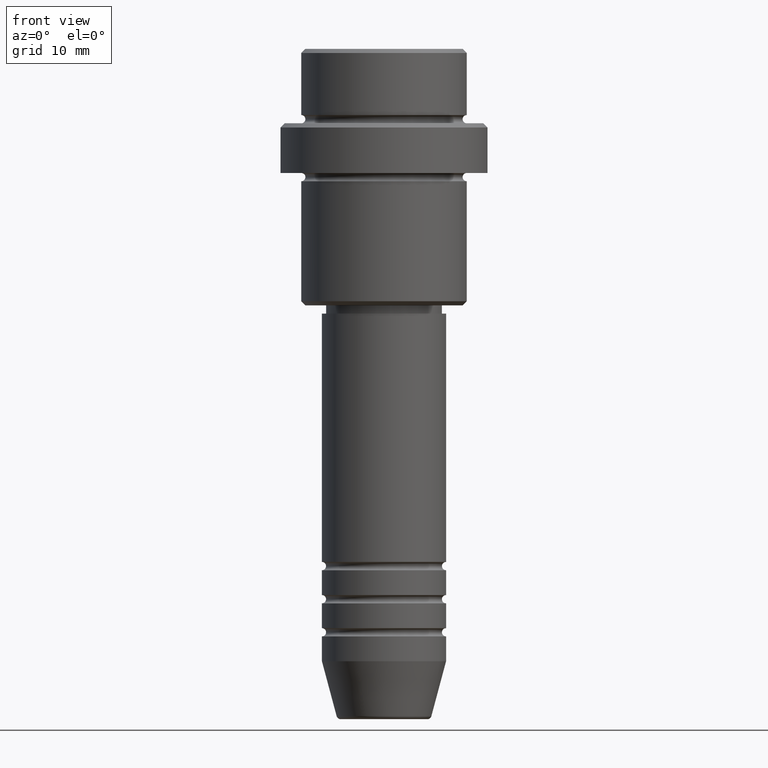
[diagram: clean part render]
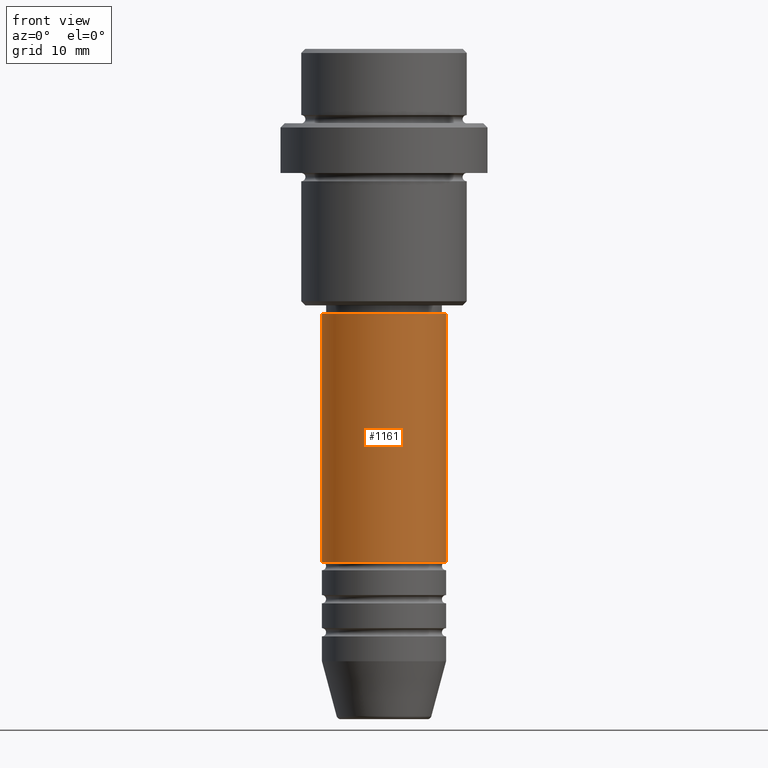
[diagram: same view with one face highlighted and labeled with its STEP entity id]
A machine part, front view. The second image highlights one B-rep face of the part: STEP entity #1161.
In plain terms, the highlighted cylindrical surface (partial cylindrical patch) has radius 7.5 mm, axis along (-0, -0, 1).
Its self-contained STEP definition (entity closure, byte-faithful):
#3 = CARTESIAN_POINT ( 'NONE',  ( -7.500000000000000000, 9.184850993605147944E-16, 0.000000000000000000 ) ) ;
#35 = EDGE_CURVE ( 'NONE', #122, #375, #297, .T. ) ;
#38 = ORIENTED_EDGE ( 'NONE', *, *, #1410, .F. ) ;
#88 = AXIS2_PLACEMENT_3D ( 'NONE', #1001, #1306, #889 ) ;
#122 = VERTEX_POINT ( 'NONE', #1126 ) ;
#152 = VECTOR ( 'NONE', #467, 1000.000000000000000 ) ;
#160 = DIRECTION ( 'NONE',  ( -0.000000000000000000, -0.000000000000000000, 1.000000000000000000 ) ) ;
#184 = DIRECTION ( 'NONE',  ( 1.000000000000000000, 0.000000000000000000, 0.000000000000000000 ) ) ;
#230 = LINE ( 'NONE', #3, #152 ) ;
#261 = DIRECTION ( 'NONE',  ( 1.000000000000000000, 0.000000000000000000, 0.000000000000000000 ) ) ;
#264 = VERTEX_POINT ( 'NONE', #1268 ) ;
#294 = CARTESIAN_POINT ( 'NONE',  ( 7.500000000000000000, 0.000000000000000000, -32.00000000000000000 ) ) ;
#296 = ORIENTED_EDGE ( 'NONE', *, *, #735, .T. ) ;
#297 = CIRCLE ( 'NONE', #88, 7.500000000000000000 ) ;
#308 = ORIENTED_EDGE ( 'NONE', *, *, #35, .T. ) ;
#312 = EDGE_LOOP ( 'NONE', ( #38, #308, #296, #1253 ) ) ;
#314 = CYLINDRICAL_SURFACE ( 'NONE', #1289, 7.500000000000000000 ) ;
#375 = VERTEX_POINT ( 'NONE', #419 ) ;
#419 = CARTESIAN_POINT ( 'NONE',  ( 7.500000000000000000, 0.000000000000000000, -61.99999999999987921 ) ) ;
#467 = DIRECTION ( 'NONE',  ( -0.000000000000000000, -0.000000000000000000, 1.000000000000000000 ) ) ;
#484 = CARTESIAN_POINT ( 'NONE',  ( 0.000000000000000000, 0.000000000000000000, -32.00000000000000000 ) ) ;
#628 = VECTOR ( 'NONE', #1390, 1000.000000000000000 ) ;
#632 = DIRECTION ( 'NONE',  ( -0.000000000000000000, -0.000000000000000000, 1.000000000000000000 ) ) ;
#735 = EDGE_CURVE ( 'NONE', #375, #1003, #987, .T. ) ;
#741 = CARTESIAN_POINT ( 'NONE',  ( 0.000000000000000000, 0.000000000000000000, 0.000000000000000000 ) ) ;
#748 = AXIS2_PLACEMENT_3D ( 'NONE', #484, #160, #261 ) ;
#775 = CARTESIAN_POINT ( 'NONE',  ( 7.500000000000000000, 0.000000000000000000, 0.000000000000000000 ) ) ;
#889 = DIRECTION ( 'NONE',  ( 1.000000000000000000, 0.000000000000000000, 0.000000000000000000 ) ) ;
#977 = FACE_OUTER_BOUND ( 'NONE', #312, .T. ) ;
#987 = LINE ( 'NONE', #775, #628 ) ;
#1001 = CARTESIAN_POINT ( 'NONE',  ( 0.000000000000000000, 0.000000000000000000, -61.99999999999987921 ) ) ;
#1003 = VERTEX_POINT ( 'NONE', #294 ) ;
#1011 = EDGE_CURVE ( 'NONE', #264, #1003, #1340, .T. ) ;
#1126 = CARTESIAN_POINT ( 'NONE',  ( -7.500000000000000000, 9.184850993605147944E-16, -61.99999999999987921 ) ) ;
#1161 = ADVANCED_FACE ( 'NONE', ( #977 ), #314, .T. ) ;
#1253 = ORIENTED_EDGE ( 'NONE', *, *, #1011, .F. ) ;
#1268 = CARTESIAN_POINT ( 'NONE',  ( -7.500000000000000000, 9.184850993605147944E-16, -32.00000000000000000 ) ) ;
#1289 = AXIS2_PLACEMENT_3D ( 'NONE', #741, #632, #184 ) ;
#1306 = DIRECTION ( 'NONE',  ( -0.000000000000000000, -0.000000000000000000, 1.000000000000000000 ) ) ;
#1340 = CIRCLE ( 'NONE', #748, 7.500000000000000000 ) ;
#1390 = DIRECTION ( 'NONE',  ( -0.000000000000000000, -0.000000000000000000, 1.000000000000000000 ) ) ;
#1410 = EDGE_CURVE ( 'NONE', #122, #264, #230, .T. ) ;